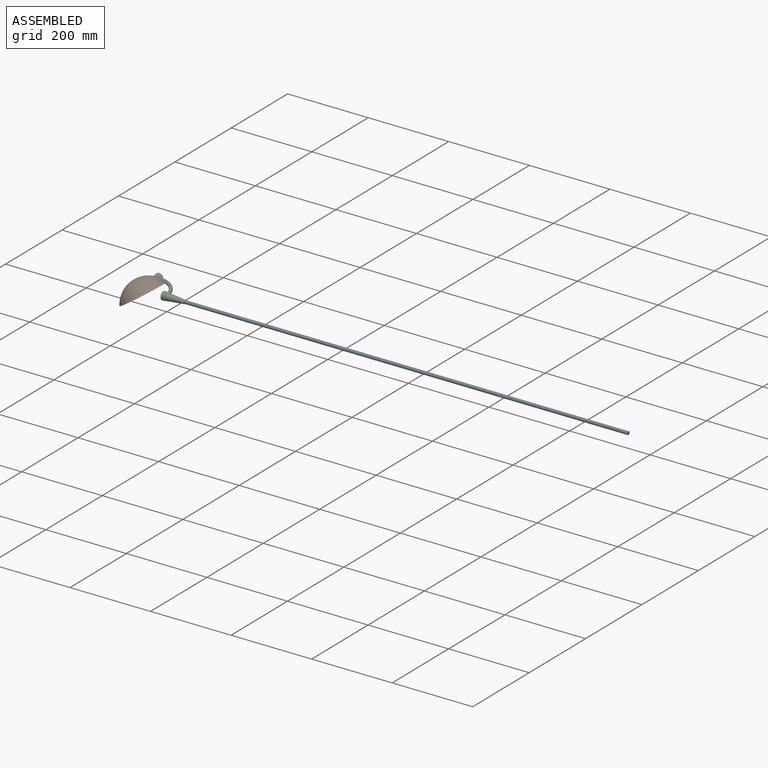
[diagram: assembled view]
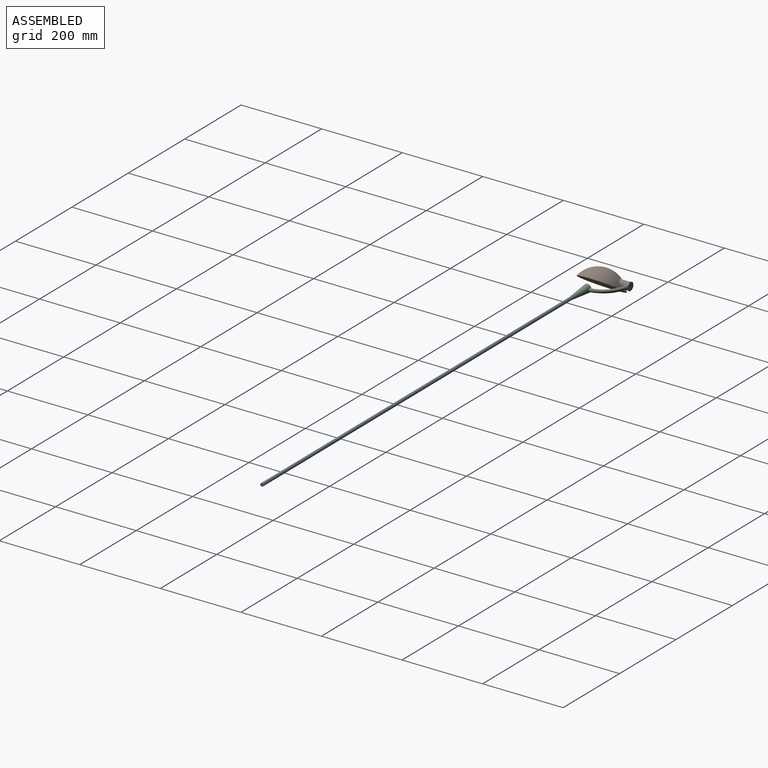
[diagram: assembled view, second angle]
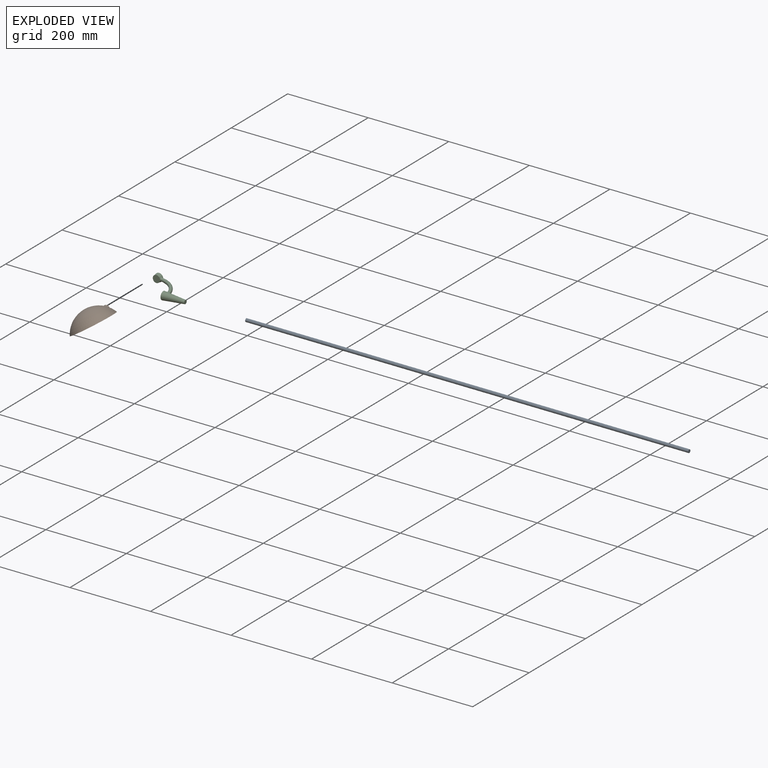
[diagram: exploded view]
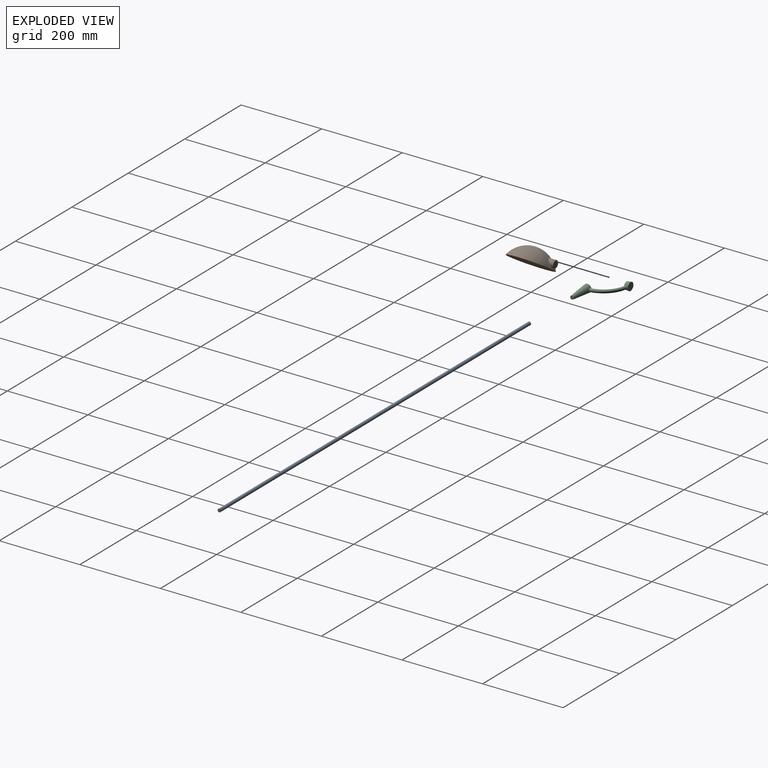
[diagram: exploded view, second angle]
ASSEMBLY  parts=3 mates=2
PART A: 3 faces, bbox 8x1100x8 mm
  f0: cylinder r=4mm len=1100mm, axis (0,1,0), area 27646mm2, adj f1,f2
  f1: plane 8x8mm, normal (0,-1,0), area 50.3mm2, adj f0
  f2: plane 8x8mm, normal (0,1,0), area 50.3mm2, adj f0
PART B: 4 faces, bbox 111x108x35 mm
  f0: sphere r=59.16mm, area 12682.8mm2, adj f1,f2
  f1: plane 108x108mm, normal (0,0,-1), area 9160.9mm2, adj f0
  f2: cylinder r=9mm len=18.79mm, axis (-1,0,0), area 640.9mm2, adj f0,f3
  f3: plane 18x18mm, normal (1,0,0), area 254.5mm2, adj f2
PART C: 7 faces, bbox 122x80.8x20 mm
  f0: plane 20x20mm, normal (0,1,0), area 314.2mm2, adj f2
  f1: plane 18x18mm, normal (0,-1,0), area 254.5mm2, adj f2
  f2: cone r=9mm half-angle=5.7deg, axis (0,1,0), area 548.4mm2, adj f0,f1,f3
  f3: torus R=62mm, axis (0,0,-1), area 1990.3mm2, adj f2,f6
  f4: plane 9x9mm, normal (1,0,0), area 63.6mm2, adj f6
  f5: plane 20x20mm, normal (-1,0,0), area 314.2mm2, adj f6
  f6: cone r=4.5mm half-angle=5.7deg, axis (-1,0,0), area 2464.8mm2, adj f3,f4,f5
PLACE A rot(axis=(0.71,-0.71,0),180deg) t=(627.33,-44.01,15.36)mm
PLACE B rot(axis=(-0.28,-0.28,0.92),95deg) t=(-27.93,-44.01,5.43)mm
PLACE C t=(27.33,-44.01,15.36)mm fixed
MATE revolute B.f2 <-> C.f2  axis (0,1,0) through (-34.67,12.99,15.36)mm
MATE fastened A.f0 <-> C.f6  axis (-1,0,0) through (77.33,-44.01,15.36)mm
